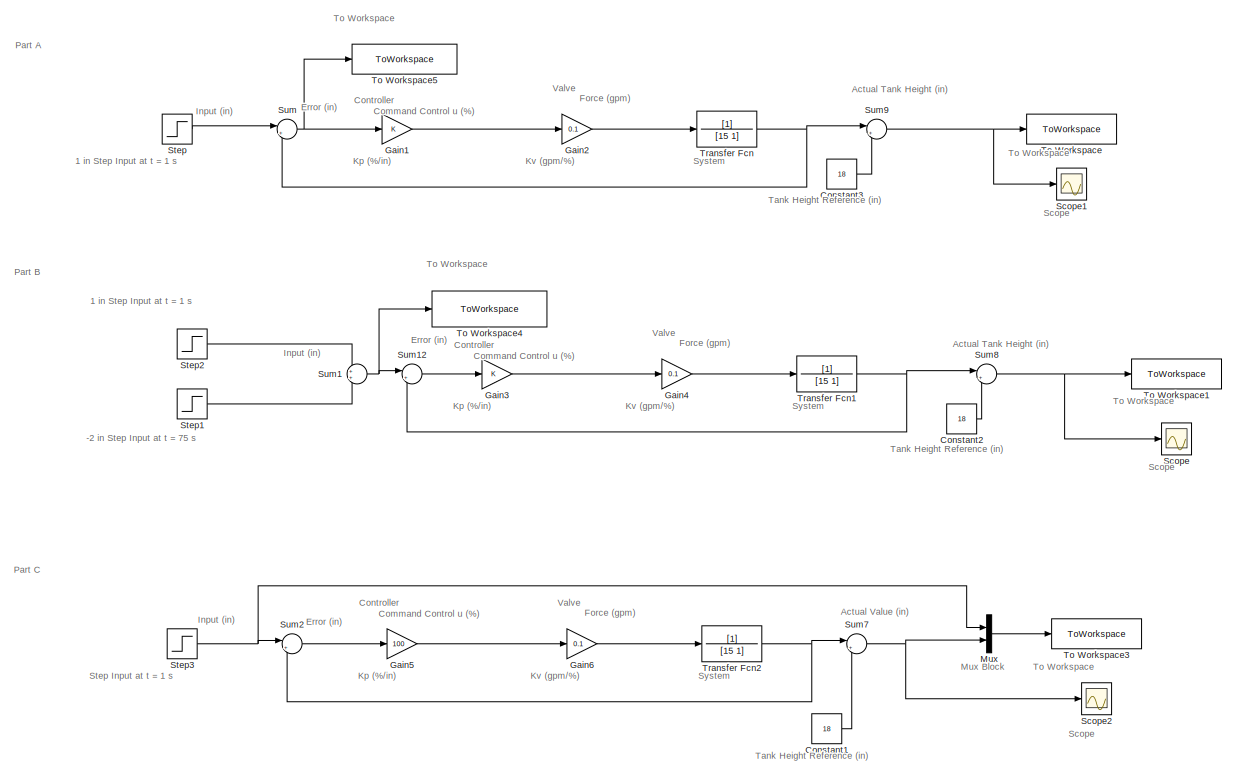
[diagram: root canvas - part 1/2, full width, top band]
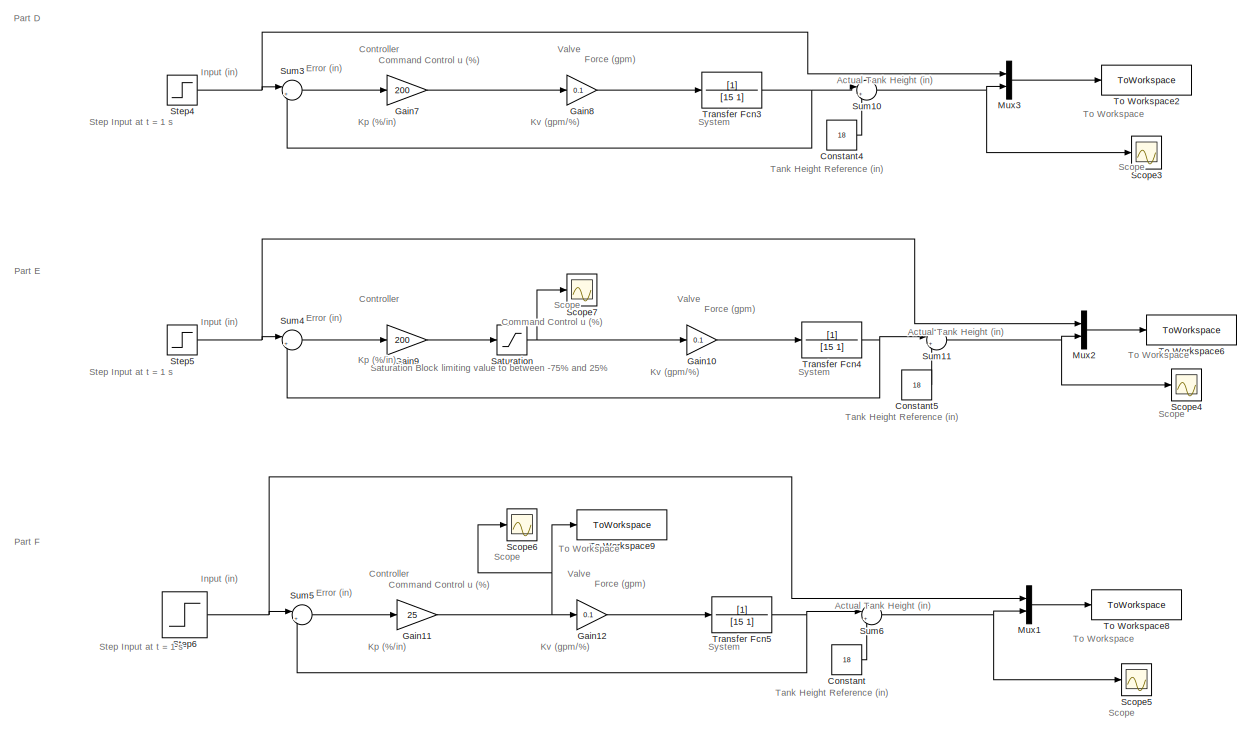
[diagram: root canvas - part 2/2, full width, bottom band]
MODEL slx_c3fe56f3b1d6
KIND model
CONFIG AbsTol = auto
CONFIG EnableMultiTasking = off
CONFIG FixedStep = auto
CONFIG MaxStep = auto
CONFIG MinStep = auto
CONFIG RelTol = 1e-9
CONFIG SampleTimeConstraint = Unconstrained
CONFIG SolverName = VariableStepAuto
CONFIG StartTime = 0.0
CONFIG StopTime = 270
BLOCK [Constant] Constant
  Value = 18
BLOCK [Constant] Constant1
  Value = 18
BLOCK [Constant] Constant2
  Value = 18
BLOCK [Constant] Constant3
  Value = 18
BLOCK [Constant] Constant4
  Value = 18
BLOCK [Constant] Constant5
  Value = 18
BLOCK [Gain] Gain1
BLOCK [Gain] Gain10
  Gain = 0.1
BLOCK [Gain] Gain11
  Gain = 25
BLOCK [Gain] Gain12
  Gain = 0.1
BLOCK [Gain] Gain2
  Gain = 0.1
BLOCK [Gain] Gain3
BLOCK [Gain] Gain4
  Gain = 0.1
BLOCK [Gain] Gain5
  Gain = 100
BLOCK [Gain] Gain6
  Gain = 0.1
BLOCK [Gain] Gain7
  Gain = 200
BLOCK [Gain] Gain8
  Gain = 0.1
BLOCK [Gain] Gain9
  Gain = 200
BLOCK [Mux] Mux
  DisplayOption = bar
  Inputs = 2
BLOCK [Mux] Mux1
  DisplayOption = bar
  Inputs = 2
BLOCK [Mux] Mux2
  DisplayOption = bar
  Inputs = 2
BLOCK [Mux] Mux3
  DisplayOption = bar
  Inputs = 2
BLOCK [Saturate] Saturation
  LowerLimit = -75
  UpperLimit = 25
BLOCK [Scope] Scope
  Floating = off
  NumInputPorts = 1
  ScopeSpecificationString = Simulink.scopes.TimeScopeBlockCfg('CurrentConfiguration', extmgr.ConfigurationSet(extmgr.Configuration('Core','General UI',true),extmgr.Configuration('Core','Source UI',true),extmgr.Configuration('Sources','WiredSimulink',true),extmgr.Configuration('Visuals','Time Domain',true,'SerializedDisplays',{struct('MinYLimReal','-0.02263','MaxYLimReal','0.20368','YLabelReal','','MinYLimMag','0.00000','MaxY...<+1362ch>
BLOCK [Scope] Scope1
  Floating = off
  NumInputPorts = 1
  ScopeSpecificationString = Simulink.scopes.TimeScopeBlockCfg('CurrentConfiguration', extmgr.ConfigurationSet(extmgr.Configuration('Core','General UI',true),extmgr.Configuration('Core','Source UI',true),extmgr.Configuration('Sources','WiredSimulink',true,'DataLoggingVariableName','ScopeData1'),extmgr.Configuration('Visuals','Time Domain',true,'SerializedDisplays',{struct('MinYLimReal','-0.01136','MaxYLimReal','0.1022','YLabe...<+1396ch>
BLOCK [Scope] Scope2
  Floating = off
  NumInputPorts = 1
  ScopeSpecificationString = Simulink.scopes.TimeScopeBlockCfg('CurrentConfiguration', extmgr.ConfigurationSet(extmgr.Configuration('Core','General UI',true),extmgr.Configuration('Core','Source UI',true),extmgr.Configuration('Sources','WiredSimulink',true,'DataLoggingVariableName','ScopeData2'),extmgr.Configuration('Visuals','Time Domain',true,'SerializedDisplays',{struct('MinYLimReal','-0.11364','MaxYLimReal','1.02273','YLab...<+1401ch>
BLOCK [Scope] Scope3
  Floating = off
  NumInputPorts = 2
  ScopeSpecificationString = Simulink.scopes.TimeScopeBlockCfg('CurrentConfiguration', extmgr.ConfigurationSet(extmgr.Configuration('Core','General UI',true),extmgr.Configuration('Core','Source UI',true),extmgr.Configuration('Sources','WiredSimulink',true,'DataLoggingVariableName','ScopeData3'),extmgr.Configuration('Visuals','Time Domain',true,'SerializedDisplays',{struct('MinYLimReal','-2.4881','MaxYLimReal','22.39286','YLab...<+1407ch>
BLOCK [Scope] Scope4
  Floating = off
  NumInputPorts = 1
  ScopeSpecificationString = Simulink.scopes.TimeScopeBlockCfg('CurrentConfiguration', extmgr.ConfigurationSet(extmgr.Configuration('Core','General UI',true),extmgr.Configuration('Core','Source UI',true),extmgr.Configuration('Sources','WiredSimulink',true,'DataLoggingVariableName','ScopeData4'),extmgr.Configuration('Visuals','Time Domain',true,'SerializedDisplays',{struct('MinYLimReal','17.7619','MaxYLimReal','20.14286','YLab...<+1395ch>
BLOCK [Scope] Scope5
  Floating = off
  NumInputPorts = 1
  ScopeSpecificationString = Simulink.scopes.TimeScopeBlockCfg('CurrentConfiguration', extmgr.ConfigurationSet(extmgr.Configuration('Core','General UI',true),extmgr.Configuration('Core','Source UI',true),extmgr.Configuration('Sources','WiredSimulink',true,'DataLoggingVariableName','ScopeData5'),extmgr.Configuration('Visuals','Time Domain',true,'SerializedDisplays',{struct('MinYLimReal','17.82143','MaxYLimReal','19.60714','YLa...<+1433ch>
BLOCK [Scope] Scope6
  Floating = off
  NumInputPorts = 1
  ScopeSpecificationString = Simulink.scopes.TimeScopeBlockCfg('CurrentConfiguration', extmgr.ConfigurationSet(extmgr.Configuration('Core','General UI',true),extmgr.Configuration('Core','Source UI',true),extmgr.Configuration('Sources','WiredSimulink',true,'DataLoggingVariableName','ScopeData6'),extmgr.Configuration('Visuals','Time Domain',true,'SerializedDisplays',{struct('MinYLimReal','-3.125','MaxYLimReal','28.125','YLabelR...<+1386ch>
BLOCK [Scope] Scope7
  Floating = off
  NumInputPorts = 1
  ScopeSpecificationString = Simulink.scopes.TimeScopeBlockCfg('CurrentConfiguration', extmgr.ConfigurationSet(extmgr.Configuration('Core','General UI',true),extmgr.Configuration('Core','Source UI',true),extmgr.Configuration('Sources','WiredSimulink',true,'DataLoggingVariableName','ScopeData7'),extmgr.Configuration('Visuals','Time Domain',true,'SerializedDisplays',{struct('MinYLimReal','-3.125','MaxYLimReal','28.125','YLabelR...<+1390ch>
BLOCK [Step] Step
  SampleTime = 1
BLOCK [Step] Step1
  After = -1
  Before = 1
  SampleTime = 1
  Time = 75
BLOCK [Step] Step2
  NameLocation = right
  SampleTime = 1
BLOCK [Step] Step3
  After = desired-18
  SampleTime = 1
BLOCK [Step] Step4
  After = desired-18
  SampleTime = 1
BLOCK [Step] Step5
  After = desired-18
  SampleTime = 1
BLOCK [Step] Step6
  After = desired-18
  SampleTime = 1
BLOCK [Sum] Sum
  Inputs = |+-
BLOCK [Sum] Sum1
BLOCK [Sum] Sum10
  Inputs = |++
BLOCK [Sum] Sum11
  Inputs = |++
BLOCK [Sum] Sum12
  Inputs = |+-
BLOCK [Sum] Sum2
  Inputs = |+-
BLOCK [Sum] Sum3
  Inputs = |+-
BLOCK [Sum] Sum4
  Inputs = |+-
BLOCK [Sum] Sum5
  Inputs = |+-
BLOCK [Sum] Sum6
  Inputs = |++
BLOCK [Sum] Sum7
  Inputs = |++
BLOCK [Sum] Sum8
  Inputs = |++
BLOCK [Sum] Sum9
  Inputs = |++
BLOCK [ToWorkspace] To Workspace
  FixptAsFi = on
  MaxDataPoints = inf
  SampleTime = -1
  VariableName = part_a
BLOCK [ToWorkspace] To Workspace1
  FixptAsFi = on
  MaxDataPoints = inf
  SampleTime = -1
  VariableName = part_b
BLOCK [ToWorkspace] To Workspace2
  FixptAsFi = on
  MaxDataPoints = inf
  SampleTime = -1
  VariableName = part_d
BLOCK [ToWorkspace] To Workspace3
  FixptAsFi = on
  MaxDataPoints = inf
  SampleTime = -1
  VariableName = part_c
BLOCK [ToWorkspace] To Workspace4
  FixptAsFi = on
  MaxDataPoints = inf
  SampleTime = -1
  VariableName = part_b_input
BLOCK [ToWorkspace] To Workspace5
  FixptAsFi = on
  MaxDataPoints = inf
  SampleTime = -1
  VariableName = part_a_input
BLOCK [ToWorkspace] To Workspace6
  FixptAsFi = on
  MaxDataPoints = inf
  SampleTime = -1
  VariableName = part_e
BLOCK [ToWorkspace] To Workspace8
  FixptAsFi = on
  MaxDataPoints = inf
  SampleTime = -1
  VariableName = part_f
BLOCK [ToWorkspace] To Workspace9
  FixptAsFi = on
  MaxDataPoints = inf
  SampleTime = -1
  VariableName = valve
BLOCK [TransferFcn] Transfer Fcn
  Denominator = [15 1]
BLOCK [TransferFcn] Transfer Fcn1
  Denominator = [15 1]
BLOCK [TransferFcn] Transfer Fcn2
  Denominator = [15 1]
BLOCK [TransferFcn] Transfer Fcn3
  Denominator = [15 1]
BLOCK [TransferFcn] Transfer Fcn4
  Denominator = [15 1]
BLOCK [TransferFcn] Transfer Fcn5
  Denominator = [15 1]
ANNOTATION (root): Step Input at t = 1 s
ANNOTATION (root): -2 in Step Input at t = 75 s
ANNOTATION (root): 1 in Step Input at t = 1 s
ANNOTATION (root): Part A
ANNOTATION (root): Part B
ANNOTATION (root): Part C
ANNOTATION (root): Part D
ANNOTATION (root): Part E
ANNOTATION (root): Part F
ANNOTATION (root): Actual Tank Height (in)
ANNOTATION (root): Actual Value (in)
ANNOTATION (root): Command Control u (%)
ANNOTATION (root): Controller
ANNOTATION (root): Error (in)
ANNOTATION (root): Force (gpm)
ANNOTATION (root): Input (in)
ANNOTATION (root): Kp (%/in)
ANNOTATION (root): Kv (gpm/%)
ANNOTATION (root): Mux Block
ANNOTATION (root): Saturation Block limiting value to between -75% and 25%
ANNOTATION (root): Scope
ANNOTATION (root): System
ANNOTATION (root): Tank Height Reference (in)
ANNOTATION (root): To Workspace
ANNOTATION (root): Valve
LINE Constant1:1 -> Sum7:2
LINE Constant2:1 -> Sum8:2
LINE Constant3:1 -> Sum9:2
LINE Constant4:1 -> Sum10:2
LINE Constant5:1 -> Sum11:2
LINE Constant:1 -> Sum6:2
LINE Gain10:1 -> Transfer Fcn4:1
NET Gain11:1 -> Gain12:1, Scope6:1, To Workspace9:1
LINE Gain12:1 -> Transfer Fcn5:1
LINE Gain1:1 -> Gain2:1
LINE Gain2:1 -> Transfer Fcn:1
LINE Gain3:1 -> Gain4:1
LINE Gain4:1 -> Transfer Fcn1:1
LINE Gain5:1 -> Gain6:1
LINE Gain6:1 -> Transfer Fcn2:1
LINE Gain7:1 -> Gain8:1
LINE Gain8:1 -> Transfer Fcn3:1
LINE Gain9:1 -> Saturation:1
LINE Mux1:1 -> To Workspace8:1
LINE Mux2:1 -> To Workspace6:1
LINE Mux3:1 -> To Workspace2:1
LINE Mux:1 -> To Workspace3:1
NET Saturation:1 -> Gain10:1, Scope7:1
LINE Step1:1 -> Sum1:2
LINE Step2:1 -> Sum1:1
NET Step3:1 -> Mux:1, Sum2:1
NET Step4:1 -> Mux3:1, Sum3:1
NET Step5:1 -> Mux2:1, Sum4:1
NET Step6:1 -> Mux1:1, Sum5:1
LINE Step:1 -> Sum:1
NET Sum10:1 -> Mux3:2, Scope3:1
NET Sum11:1 -> Mux2:2, Scope4:1
LINE Sum12:1 -> Gain3:1
NET Sum1:1 -> Sum12:1, To Workspace4:1
LINE Sum2:1 -> Gain5:1
LINE Sum3:1 -> Gain7:1
LINE Sum4:1 -> Gain9:1
LINE Sum5:1 -> Gain11:1
NET Sum6:1 -> Mux1:2, Scope5:1
NET Sum7:1 -> Mux:2, Scope2:1
NET Sum8:1 -> Scope:1, To Workspace1:1
NET Sum9:1 -> Scope1:1, To Workspace:1
NET Sum:1 -> Gain1:1, To Workspace5:1
NET Transfer Fcn1:1 -> Sum12:2, Sum8:1
NET Transfer Fcn2:1 -> Sum2:2, Sum7:1
NET Transfer Fcn3:1 -> Sum10:1, Sum3:2
NET Transfer Fcn4:1 -> Sum11:1, Sum4:2
NET Transfer Fcn5:1 -> Sum5:2, Sum6:1
NET Transfer Fcn:1 -> Sum9:1, Sum:2
note: NET lines group one-source signal fan-out (src -> all destinations, sorted); 1:1 wires keep LINE
